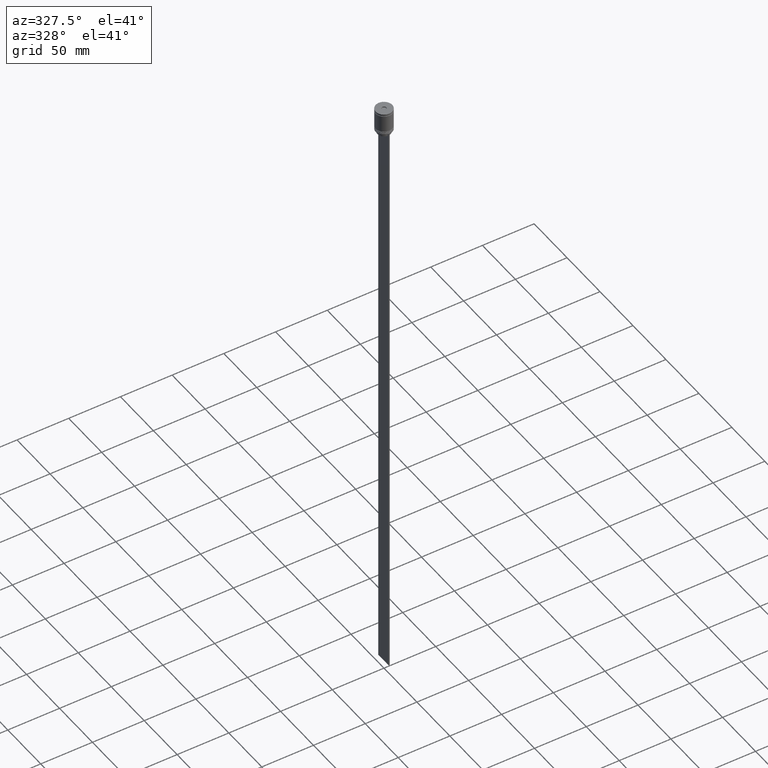
[diagram: clean part render]
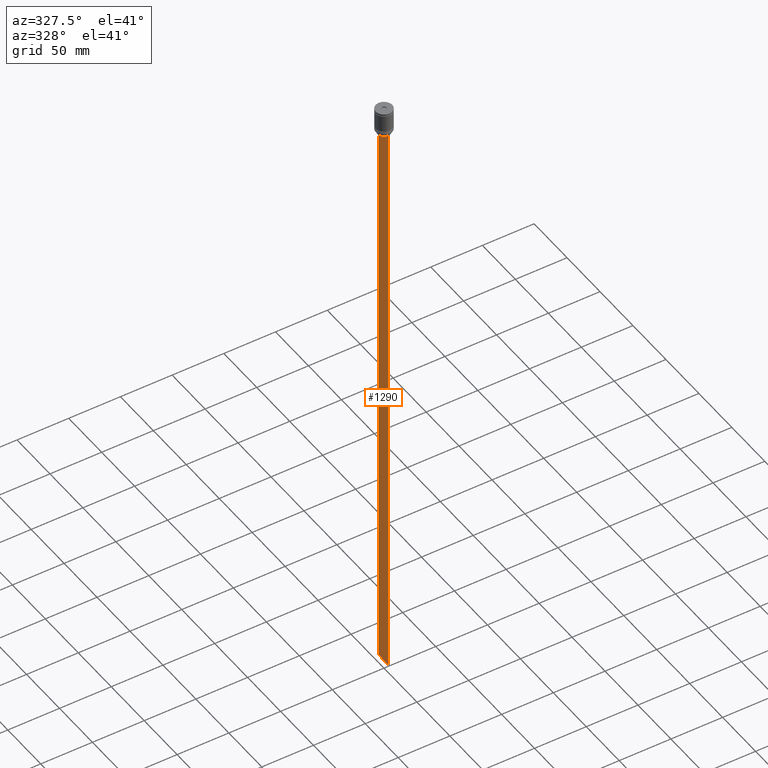
[diagram: same view with one face highlighted and labeled with its STEP entity id]
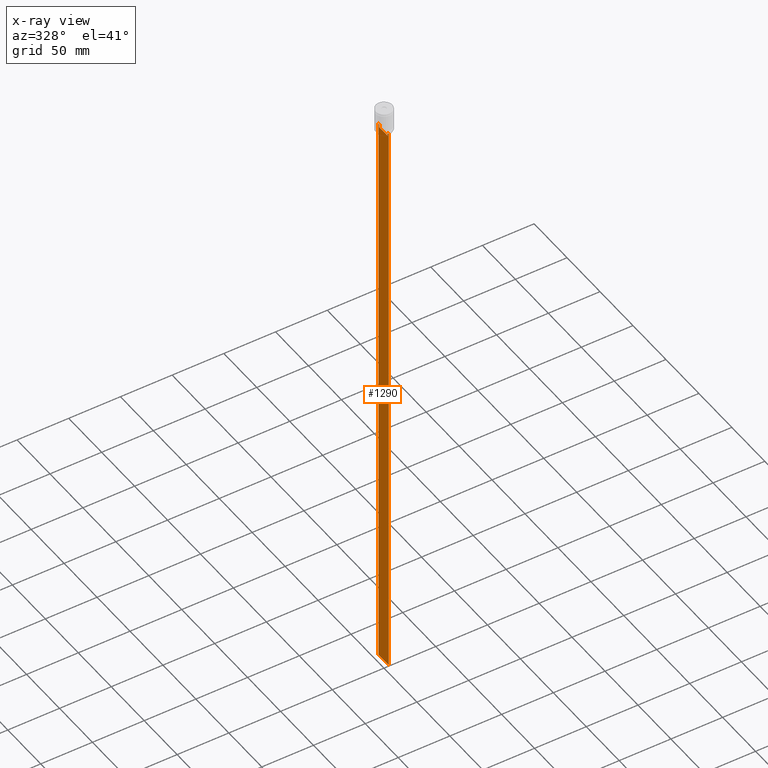
[diagram: x-ray of the same camera — body ghosted, the highlighted face saturated]
A machine part, auxiliary view. The second image highlights one B-rep face of the part: STEP entity #1290.
The next image is the same camera in x-ray: the body ghosted, the highlighted face saturated — about 0% of this face is hidden behind the body in this view.
In plain terms, the highlighted planar face has unit normal (-1, 0, 0).
Its self-contained STEP definition (entity closure, byte-faithful):
#15 = CARTESIAN_POINT ( 'NONE',  ( -0.4999999999999998890, 6.714736947114699817, -22.16668390704818492 ) ) ;
#62 = DIRECTION ( 'NONE',  ( -1.000000000000000000, 0.000000000000000000, 0.000000000000000000 ) ) ;
#126 = EDGE_CURVE ( 'NONE', #1671, #311, #1708, .T. ) ;
#129 = CARTESIAN_POINT ( 'NONE',  ( -0.4999999999999998890, -6.380438856379714530, -22.50000000000000000 ) ) ;
#134 = CARTESIAN_POINT ( 'NONE',  ( -0.4999999999999998890, 6.380438856379714530, -22.50000000000000000 ) ) ;
#290 = EDGE_CURVE ( 'NONE', #1894, #1709, #1413, .T. ) ;
#291 = LINE ( 'NONE', #937, #1742 ) ;
#294 = CARTESIAN_POINT ( 'NONE',  ( -0.4999999999999998890, 7.999999999999996447, -596.0000000000000000 ) ) ;
#306 = VERTEX_POINT ( 'NONE', #294 ) ;
#307 = B_SPLINE_CURVE_WITH_KNOTS ( 'NONE', 3,
 ( #129, #1888, #436, #586 ),
 .UNSPECIFIED., .F., .F.,
 ( 4, 4 ),
 ( 0.02996184199614752505, 0.03067452609193706964 ),
 .UNSPECIFIED. ) ;
#311 = VERTEX_POINT ( 'NONE', #2073 ) ;
#340 = CARTESIAN_POINT ( 'NONE',  ( -0.4999999999999998890, -6.380438856379714530, -24.99999999999999645 ) ) ;
#358 = EDGE_CURVE ( 'NONE', #851, #987, #1918, .T. ) ;
#367 = EDGE_CURVE ( 'NONE', #1869, #940, #956, .T. ) ;
#382 = LINE ( 'NONE', #393, #984 ) ;
#393 = CARTESIAN_POINT ( 'NONE',  ( -0.4999999999999998890, -8.000000000000003553, -22.00000000000000000 ) ) ;
#436 = CARTESIAN_POINT ( 'NONE',  ( -0.4999999999999998890, -6.714736947306000125, -22.16668390685738643 ) ) ;
#461 = EDGE_CURVE ( 'NONE', #940, #851, #1126, .T. ) ;
#481 = VECTOR ( 'NONE', #532, 1000.000000000000000 ) ;
#525 = CARTESIAN_POINT ( 'NONE',  ( -0.4999999999999998890, 6.380438856379714530, -24.99999999999999645 ) ) ;
#532 = DIRECTION ( 'NONE',  ( 0.000000000000000000, 1.000000000000000000, 0.000000000000000000 ) ) ;
#537 = CARTESIAN_POINT ( 'NONE',  ( -0.4999999999999998890, 6.881860213634107382, -22.00000000000000000 ) ) ;
#563 = ORIENTED_EDGE ( 'NONE', *, *, #126, .F. ) ;
#576 = VECTOR ( 'NONE', #1030, 1000.000000000000000 ) ;
#586 = CARTESIAN_POINT ( 'NONE',  ( -0.4999999999999998890, -6.881860213634107382, -22.00000000000000000 ) ) ;
#605 = VECTOR ( 'NONE', #1112, 1000.000000000000000 ) ;
#646 = ORIENTED_EDGE ( 'NONE', *, *, #290, .F. ) ;
#664 = ORIENTED_EDGE ( 'NONE', *, *, #2010, .F. ) ;
#695 = CARTESIAN_POINT ( 'NONE',  ( -0.4999999999999998890, -8.000000000000003553, -596.0000000000000000 ) ) ;
#711 = CARTESIAN_POINT ( 'NONE',  ( -0.4999999999999998890, -6.380438856379714530, -22.50000000000000000 ) ) ;
#713 = VECTOR ( 'NONE', #1221, 1000.000000000000000 ) ;
#722 = DIRECTION ( 'NONE',  ( 0.000000000000000000, -1.000000000000000000, 0.000000000000000000 ) ) ;
#762 = CARTESIAN_POINT ( 'NONE',  ( -0.4999999999999998890, -6.881860213634107382, -22.00000000000000000 ) ) ;
#837 = CARTESIAN_POINT ( 'NONE',  ( -0.4999999999999998890, -8.000000000000003553, -22.00000000000000000 ) ) ;
#841 = EDGE_LOOP ( 'NONE', ( #1973, #2003, #1647, #1505, #1111, #563, #664, #646, #1797, #1097, #2041, #1073 ) ) ;
#851 = VERTEX_POINT ( 'NONE', #340 ) ;
#867 = CARTESIAN_POINT ( 'NONE',  ( -0.4999999999999998890, -8.000000000000003553, -5.968780458118602361 ) ) ;
#871 = CARTESIAN_POINT ( 'NONE',  ( -0.4999999999999998890, 7.999999999999996447, -5.968780458118602361 ) ) ;
#891 = EDGE_CURVE ( 'NONE', #1006, #1982, #1828, .T. ) ;
#918 = AXIS2_PLACEMENT_3D ( 'NONE', #867, #62, #1995 ) ;
#937 = CARTESIAN_POINT ( 'NONE',  ( -0.4999999999999998890, -8.000000000000003553, -22.00000000000000000 ) ) ;
#940 = VERTEX_POINT ( 'NONE', #525 ) ;
#956 = LINE ( 'NONE', #1443, #1417 ) ;
#984 = VECTOR ( 'NONE', #722, 1000.000000000000000 ) ;
#985 = CARTESIAN_POINT ( 'NONE',  ( -0.4999999999999998890, 6.400000000000006573, -24.99999999999999645 ) ) ;
#987 = VERTEX_POINT ( 'NONE', #711 ) ;
#1006 = VERTEX_POINT ( 'NONE', #1715 ) ;
#1030 = DIRECTION ( 'NONE',  ( 0.000000000000000000, 0.000000000000000000, -1.000000000000000000 ) ) ;
#1072 = DIRECTION ( 'NONE',  ( 0.000000000000000000, 0.000000000000000000, -1.000000000000000000 ) ) ;
#1073 = ORIENTED_EDGE ( 'NONE', *, *, #367, .F. ) ;
#1081 = EDGE_CURVE ( 'NONE', #1006, #306, #1545, .T. ) ;
#1097 = ORIENTED_EDGE ( 'NONE', *, *, #358, .F. ) ;
#1111 = ORIENTED_EDGE ( 'NONE', *, *, #1645, .F. ) ;
#1112 = DIRECTION ( 'NONE',  ( -0.000000000000000000, -0.000000000000000000, 1.000000000000000000 ) ) ;
#1126 = LINE ( 'NONE', #985, #1762 ) ;
#1138 = CARTESIAN_POINT ( 'NONE',  ( -0.4999999999999998890, 6.547597841304917843, -22.33335192459222185 ) ) ;
#1139 = DIRECTION ( 'NONE',  ( 0.000000000000000000, -1.000000000000000000, 0.000000000000000000 ) ) ;
#1180 = FACE_OUTER_BOUND ( 'NONE', #841, .T. ) ;
#1221 = DIRECTION ( 'NONE',  ( 0.000000000000000000, 0.000000000000000000, -1.000000000000000000 ) ) ;
#1226 = CARTESIAN_POINT ( 'NONE',  ( -0.4999999999999998890, 6.881860213634107382, -22.00000000000000000 ) ) ;
#1283 = VECTOR ( 'NONE', #1753, 1000.000000000000000 ) ;
#1290 = ADVANCED_FACE ( 'NONE', ( #1180 ), #1836, .T. ) ;
#1371 = VERTEX_POINT ( 'NONE', #1226 ) ;
#1379 = CARTESIAN_POINT ( 'NONE',  ( -0.4999999999999998890, -8.000000000000003553, -5.968780458118602361 ) ) ;
#1413 = LINE ( 'NONE', #1583, #1283 ) ;
#1417 = VECTOR ( 'NONE', #1072, 1000.000000000000000 ) ;
#1443 = CARTESIAN_POINT ( 'NONE',  ( -0.4999999999999998890, 6.380438856379714530, 0.000000000000000000 ) ) ;
#1454 = CARTESIAN_POINT ( 'NONE',  ( -0.4999999999999998890, -8.000000000000003553, -22.00000000000000000 ) ) ;
#1462 = CARTESIAN_POINT ( 'NONE',  ( -0.4999999999999998890, -7.884161337770813738, -22.00000000000000000 ) ) ;
#1483 = DIRECTION ( 'NONE',  ( 0.000000000000000000, -1.000000000000000000, 0.000000000000000000 ) ) ;
#1505 = ORIENTED_EDGE ( 'NONE', *, *, #1081, .T. ) ;
#1526 = VECTOR ( 'NONE', #1782, 1000.000000000000000 ) ;
#1545 = LINE ( 'NONE', #871, #713 ) ;
#1583 = CARTESIAN_POINT ( 'NONE',  ( -0.4999999999999998890, -8.000000000000003553, -22.00000000000000000 ) ) ;
#1617 = EDGE_CURVE ( 'NONE', #1371, #1869, #1808, .T. ) ;
#1645 = EDGE_CURVE ( 'NONE', #311, #306, #1648, .T. ) ;
#1647 = ORIENTED_EDGE ( 'NONE', *, *, #891, .F. ) ;
#1648 = LINE ( 'NONE', #695, #481 ) ;
#1671 = VERTEX_POINT ( 'NONE', #837 ) ;
#1708 = LINE ( 'NONE', #1379, #576 ) ;
#1709 = VERTEX_POINT ( 'NONE', #1462 ) ;
#1715 = CARTESIAN_POINT ( 'NONE',  ( -0.4999999999999998890, 7.999999999999996447, -22.00000000000000000 ) ) ;
#1742 = VECTOR ( 'NONE', #1139, 1000.000000000000000 ) ;
#1753 = DIRECTION ( 'NONE',  ( 0.000000000000000000, -1.000000000000000000, 0.000000000000000000 ) ) ;
#1762 = VECTOR ( 'NONE', #1483, 1000.000000000000000 ) ;
#1782 = DIRECTION ( 'NONE',  ( 0.000000000000000000, -1.000000000000000000, 0.000000000000000000 ) ) ;
#1787 = CARTESIAN_POINT ( 'NONE',  ( -0.4999999999999998890, 6.380438856379714530, -22.50000000000000000 ) ) ;
#1797 = ORIENTED_EDGE ( 'NONE', *, *, #1962, .F. ) ;
#1808 = B_SPLINE_CURVE_WITH_KNOTS ( 'NONE', 3,
 ( #537, #15, #1138, #1787 ),
 .UNSPECIFIED., .F., .F.,
 ( 4, 4 ),
 ( 0.01172465562756039477, 0.01243276816391824212 ),
 .UNSPECIFIED. ) ;
#1826 = EDGE_CURVE ( 'NONE', #1982, #1371, #382, .T. ) ;
#1828 = LINE ( 'NONE', #1454, #1526 ) ;
#1836 = PLANE ( 'NONE',  #918 ) ;
#1869 = VERTEX_POINT ( 'NONE', #134 ) ;
#1888 = CARTESIAN_POINT ( 'NONE',  ( -0.4999999999999998890, -6.547597841511251460, -22.33335192438651973 ) ) ;
#1894 = VERTEX_POINT ( 'NONE', #762 ) ;
#1918 = LINE ( 'NONE', #2042, #605 ) ;
#1962 = EDGE_CURVE ( 'NONE', #987, #1894, #307, .T. ) ;
#1973 = ORIENTED_EDGE ( 'NONE', *, *, #1617, .F. ) ;
#1982 = VERTEX_POINT ( 'NONE', #2045 ) ;
#1995 = DIRECTION ( 'NONE',  ( 0.000000000000000000, 0.000000000000000000, 1.000000000000000000 ) ) ;
#2003 = ORIENTED_EDGE ( 'NONE', *, *, #1826, .F. ) ;
#2010 = EDGE_CURVE ( 'NONE', #1709, #1671, #291, .T. ) ;
#2041 = ORIENTED_EDGE ( 'NONE', *, *, #461, .F. ) ;
#2042 = CARTESIAN_POINT ( 'NONE',  ( -0.4999999999999998890, -6.380438856379714530, 0.000000000000000000 ) ) ;
#2045 = CARTESIAN_POINT ( 'NONE',  ( -0.4999999999999998890, 7.884161337770813738, -22.00000000000000000 ) ) ;
#2073 = CARTESIAN_POINT ( 'NONE',  ( -0.4999999999999998890, -8.000000000000003553, -596.0000000000000000 ) ) ;